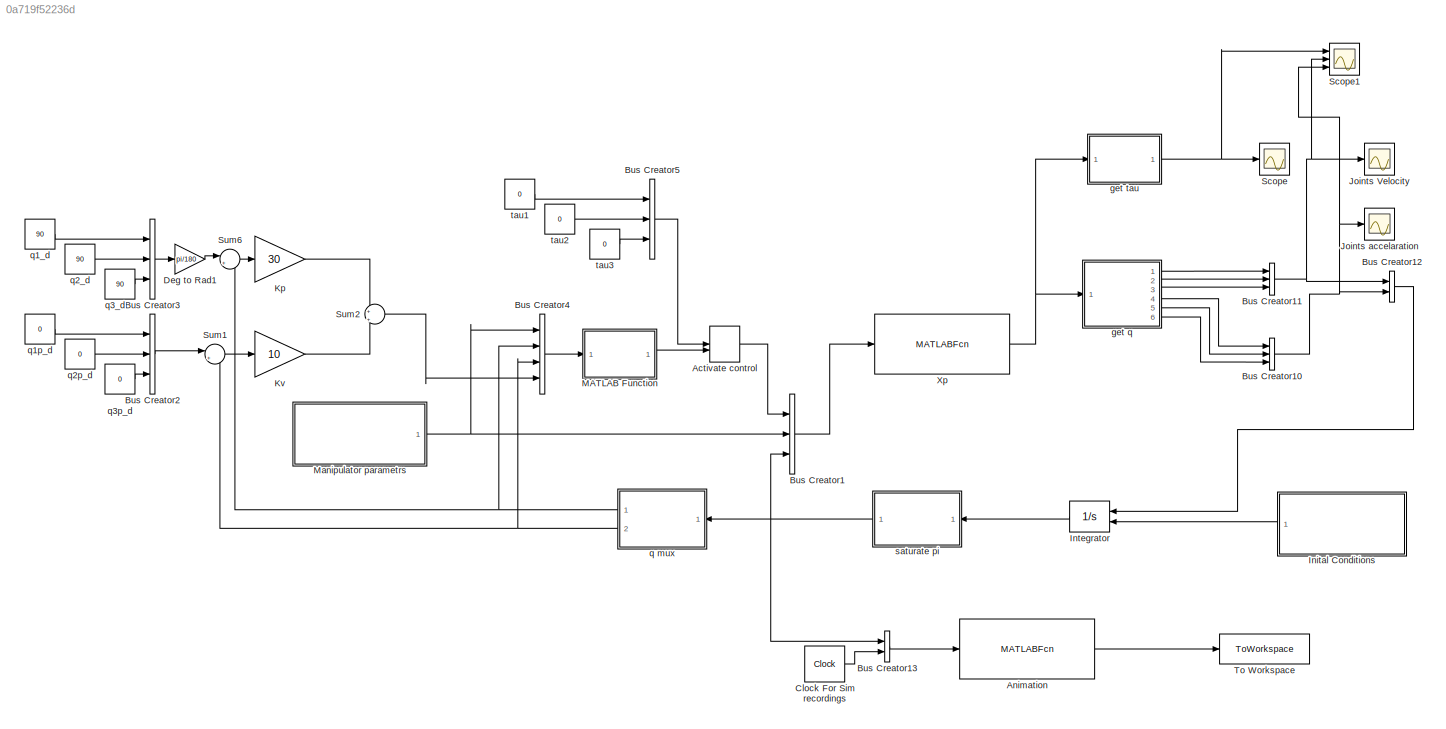
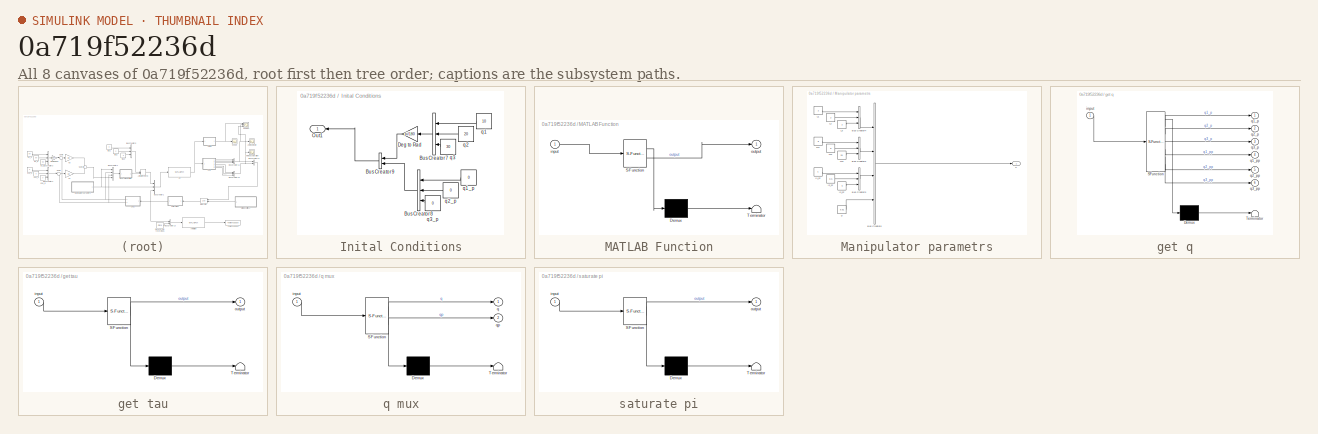
[diagram: thumbnail index - all 8 canvases of the model, root first then tree order]
MODEL slx_0a719f52236d
KIND model
CONFIG AbsTol = auto
CONFIG EnableMultiTasking = off
CONFIG FixedStep = auto
CONFIG MaxStep = 0.011
CONFIG MinStep = 0.01
CONFIG RelTol = 1e-3
CONFIG SampleTimeConstraint = Unconstrained
CONFIG SolverName = ode45
CONFIG StartTime = 0.0
CONFIG StopTime = 5
BLOCK [ManualSwitch] Activate control
  CurrentSetting = 0
BLOCK [MATLABFcn] Animation
  Description = yudyu
  MATLABFcn = AnimationSim
  OutputDimensions = 6
  OutputSignalType = real
  Ports = [1, 1]
BLOCK [BusCreator] Bus Creator1
  DisplayOption = bar
  InheritFromInputs = on
  Inputs = 3
  Ports = [3, 1]
BLOCK [BusCreator] Bus Creator10
  DisplayOption = bar
  InheritFromInputs = on
  Inputs = 3
  Ports = [3, 1]
BLOCK [BusCreator] Bus Creator11
  DisplayOption = bar
  InheritFromInputs = on
  Inputs = 3
  Ports = [3, 1]
BLOCK [BusCreator] Bus Creator12
  DisplayOption = bar
  InheritFromInputs = on
  Inputs = 2
  Ports = [2, 1]
BLOCK [BusCreator] Bus Creator13
  DisplayOption = bar
  InheritFromInputs = on
  Inputs = 2
  Ports = [2, 1]
BLOCK [BusCreator] Bus Creator2
  DisplayOption = bar
  InheritFromInputs = on
  Inputs = 3
  Ports = [3, 1]
BLOCK [BusCreator] Bus Creator3
  DisplayOption = bar
  InheritFromInputs = on
  Inputs = 3
  Ports = [3, 1]
BLOCK [BusCreator] Bus Creator4
  DisplayOption = bar
  InheritFromInputs = on
  Inputs = 4
  Ports = [4, 1]
BLOCK [BusCreator] Bus Creator5
  DisplayOption = bar
  InheritFromInputs = on
  Inputs = 3
  Ports = [3, 1]
BLOCK [Clock] Clock For Sim recordings
  DisplayTime = on
BLOCK [Gain] Deg to Rad1
  Gain = pi/180
BLOCK [SubSystem] Inital Conditions
  Ports = [0, 1]
  RequestExecContextInheritance = off
BLOCK [BusCreator] Inital Conditions/Bus Creator7
  DisplayOption = bar
  InheritFromInputs = on
  Inputs = 3
  Ports = [3, 1]
BLOCK [BusCreator] Inital Conditions/Bus Creator8
  DisplayOption = bar
  InheritFromInputs = on
  Inputs = 3
  Ports = [3, 1]
BLOCK [BusCreator] Inital Conditions/Bus Creator9
  DisplayOption = bar
  InheritFromInputs = on
  Inputs = 2
  Ports = [2, 1]
BLOCK [Gain] Inital Conditions/Deg to Rad
  Gain = pi/180
BLOCK [Outport] Inital Conditions/Out1
BLOCK [Constant] Inital Conditions/q1
  Value = 10
BLOCK [Constant] Inital Conditions/q1_p
  Value = 0
BLOCK [Constant] Inital Conditions/q2
  Value = 20
BLOCK [Constant] Inital Conditions/q2_p
  Value = 0
BLOCK [Constant] Inital Conditions/q3
  Value = 30
BLOCK [Constant] Inital Conditions/q3_p
  Value = 0
BLOCK [Integrator] Integrator
  InitialConditionSource = external
  Ports = [2, 1]
BLOCK [Scope] Joints Velocity
  Floating = off
  NumInputPorts = 1
  Ports = [1]
  ScopeSpecificationString = Simulink.scopes.TimeScopeBlockCfg('CurrentConfiguration', extmgr.ConfigurationSet(extmgr.Configuration('Core','General UI',true),extmgr.Configuration('Core','Source UI',true),extmgr.Configuration('Sources','WiredSimulink',true,'DataLoggingVariableName','ScopeData1'),extmgr.Configuration('Visuals','Time Domain',true,'SerializedDisplays',{struct('MinYLimReal','-0.37327','MaxYLimReal','3.35944','YLab...<+1425ch>
BLOCK [Scope] Joints accelaration
  Floating = off
  NumInputPorts = 1
  Ports = [1]
  ScopeSpecificationString = Simulink.scopes.TimeScopeBlockCfg('CurrentConfiguration', extmgr.ConfigurationSet(extmgr.Configuration('Core','General UI',true),extmgr.Configuration('Core','Source UI',true),extmgr.Configuration('Sources','WiredSimulink',true,'DataLoggingVariableName','ScopeData2'),extmgr.Configuration('Visuals','Time Domain',true,'SerializedDisplays',{struct('MinYLimReal','-12.42062','MaxYLimReal','47.92218','YL...<+1434ch>
BLOCK [Gain] Kp
  Gain = 30
BLOCK [Gain] Kv
  Gain = 10
BLOCK [SubSystem] MATLAB Function
  ErrorFcn = Stateflow.Translate.translate
  PermitHierarchicalResolution = ExplicitOnly
  Ports = [1, 1]
  RequestExecContextInheritance = off
  SFBlockType = MATLAB Function
  TreatAsAtomicUnit = on
BLOCK [Demux] MATLAB Function/ Demux 
  Outputs = 1
  Ports = [1, 1]
BLOCK [S-Function] MATLAB Function/ SFunction 
  EnableBusSupport = on
  FunctionName = sf_sfun
  PortCounts = [1 2]
  Ports = [1, 2]
  SFcnIsStateOwnerBlock = off
  SFunctionDeploymentMode = off
  Tag = Stateflow S-Function 5
BLOCK [Terminator] MATLAB Function/ Terminator 
BLOCK [Inport] MATLAB Function/input
BLOCK [Outport] MATLAB Function/output
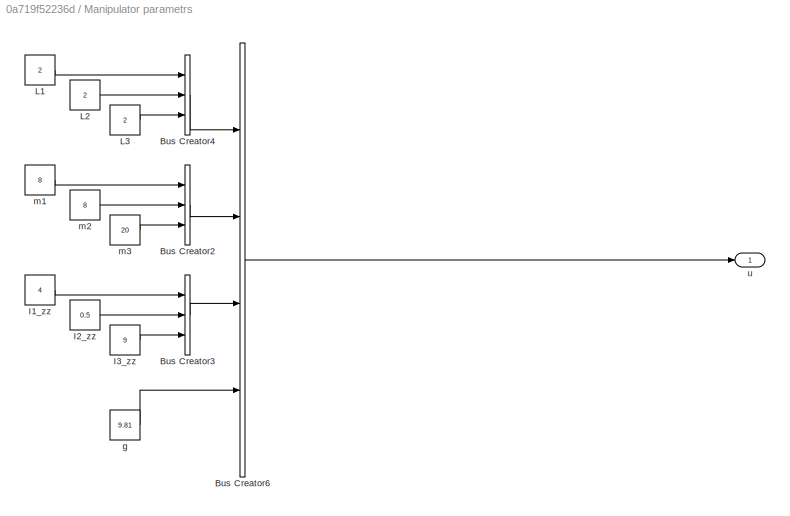
BLOCK [SubSystem] Manipulator parametrs
  Ports = [0, 1]
  RequestExecContextInheritance = off
BLOCK [BusCreator] Manipulator parametrs/Bus Creator2
  DisplayOption = bar
  InheritFromInputs = on
  Inputs = 3
  Ports = [3, 1]
BLOCK [BusCreator] Manipulator parametrs/Bus Creator3
  DisplayOption = bar
  InheritFromInputs = on
  Inputs = 3
  Ports = [3, 1]
BLOCK [BusCreator] Manipulator parametrs/Bus Creator4
  DisplayOption = bar
  InheritFromInputs = on
  Inputs = 3
  Ports = [3, 1]
BLOCK [BusCreator] Manipulator parametrs/Bus Creator6
  DisplayOption = bar
  InheritFromInputs = on
  Inputs = 4
  Ports = [4, 1]
BLOCK [Constant] Manipulator parametrs/I1_zz
  Value = 4
BLOCK [Constant] Manipulator parametrs/I2_zz
  Value = 0.5
BLOCK [Constant] Manipulator parametrs/I3_zz
  Value = 9
BLOCK [Constant] Manipulator parametrs/L1
  Value = 2
BLOCK [Constant] Manipulator parametrs/L2
  Value = 2
BLOCK [Constant] Manipulator parametrs/L3
  Value = 2
BLOCK [Constant] Manipulator parametrs/g
  Value = 9.81
BLOCK [Constant] Manipulator parametrs/m1
  Value = 8
BLOCK [Constant] Manipulator parametrs/m2
  Value = 8
BLOCK [Constant] Manipulator parametrs/m3
  Value = 20
BLOCK [Outport] Manipulator parametrs/u
BLOCK [Scope] Scope
  Floating = off
  NumInputPorts = 1
  Ports = [1]
  ScopeSpecificationString = Simulink.scopes.TimeScopeBlockCfg('CurrentConfiguration', extmgr.ConfigurationSet(extmgr.Configuration('Core','General UI',true),extmgr.Configuration('Core','Source UI',true),extmgr.Configuration('Sources','WiredSimulink',true),extmgr.Configuration('Visuals','Time Domain',true,'SerializedDisplays',{struct('MinYLimReal','-18927.72673','MaxYLimReal','41730.31584','YLabelReal','','MinYLimMag','   0.0...<+1455ch>
BLOCK [Scope] Scope1
  Floating = off
  NumInputPorts = 3
  Ports = [3]
  ScopeSpecificationString = Simulink.scopes.TimeScopeBlockCfg('CurrentConfiguration', extmgr.ConfigurationSet(extmgr.Configuration('Core','General UI',true),extmgr.Configuration('Core','Source UI',true),extmgr.Configuration('Sources','WiredSimulink',true,'DataLoggingVariableName','ScopeData3'),extmgr.Configuration('Visuals','Time Domain',true,'SerializedDisplays',{struct('MinYLimReal','-94379.04598','MaxYLimReal','256668.240...<+2933ch>
BLOCK [Sum] Sum1
  Inputs = |+-
  Ports = [2, 1]
BLOCK [Sum] Sum2
  Inputs = +|+
  Ports = [2, 1]
BLOCK [Sum] Sum6
  Inputs = |+-
  Ports = [2, 1]
BLOCK [ToWorkspace] To Workspace
  FixptAsFi = on
  MaxDataPoints = inf
  Ports = [1]
  SampleTime = -1
  SaveFormat = Timeseries
  VariableName = simout
BLOCK [MATLABFcn] Xp
  Description = yudyu
  MATLABFcn = Xp_solve
  OutputDimensions = 9
  OutputSignalType = real
  Ports = [1, 1]
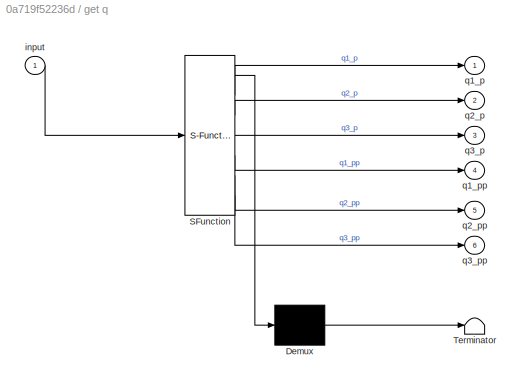
BLOCK [SubSystem] get q
  ErrorFcn = Stateflow.Translate.translate
  PermitHierarchicalResolution = ExplicitOnly
  Ports = [1, 6]
  RequestExecContextInheritance = off
  SFBlockType = MATLAB Function
  TreatAsAtomicUnit = on
BLOCK [Demux] get q/ Demux 
  Outputs = 1
  Ports = [1, 1]
BLOCK [S-Function] get q/ SFunction 
  EnableBusSupport = on
  FunctionName = sf_sfun
  PortCounts = [1 7]
  Ports = [1, 7]
  SFcnIsStateOwnerBlock = off
  SFunctionDeploymentMode = off
  Tag = Stateflow S-Function 4
BLOCK [Terminator] get q/ Terminator 
BLOCK [Inport] get q/input
BLOCK [Outport] get q/q1_p
BLOCK [Outport] get q/q1_pp
  Port = 4
BLOCK [Outport] get q/q2_p
  Port = 2
BLOCK [Outport] get q/q2_pp
  Port = 5
BLOCK [Outport] get q/q3_p
  Port = 3
BLOCK [Outport] get q/q3_pp
  Port = 6
BLOCK [SubSystem] get tau
  ErrorFcn = Stateflow.Translate.translate
  PermitHierarchicalResolution = ExplicitOnly
  Ports = [1, 1]
  RequestExecContextInheritance = off
  SFBlockType = MATLAB Function
  TreatAsAtomicUnit = on
BLOCK [Demux] get tau/ Demux 
  Outputs = 1
  Ports = [1, 1]
BLOCK [S-Function] get tau/ SFunction 
  EnableBusSupport = on
  FunctionName = sf_sfun
  PortCounts = [1 2]
  Ports = [1, 2]
  SFcnIsStateOwnerBlock = off
  SFunctionDeploymentMode = off
  Tag = Stateflow S-Function 2
BLOCK [Terminator] get tau/ Terminator 
BLOCK [Inport] get tau/input
BLOCK [Outport] get tau/output
BLOCK [SubSystem] q mux
  ErrorFcn = Stateflow.Translate.translate
  PermitHierarchicalResolution = ExplicitOnly
  Ports = [1, 2]
  RequestExecContextInheritance = off
  SFBlockType = MATLAB Function
  TreatAsAtomicUnit = on
BLOCK [Demux] q mux/ Demux 
  Outputs = 1
  Ports = [1, 1]
BLOCK [S-Function] q mux/ SFunction 
  EnableBusSupport = on
  FunctionName = sf_sfun
  PortCounts = [1 3]
  Ports = [1, 3]
  SFcnIsStateOwnerBlock = off
  SFunctionDeploymentMode = off
  Tag = Stateflow S-Function 1
BLOCK [Terminator] q mux/ Terminator 
BLOCK [Inport] q mux/input
BLOCK [Outport] q mux/q
BLOCK [Outport] q mux/qp
  Port = 2
BLOCK [Constant] q1_d
  Value = 90
BLOCK [Constant] q1p_d
  Value = 0
BLOCK [Constant] q2_d
  Value = 90
BLOCK [Constant] q2p_d
  Value = 0
BLOCK [Constant] q3_d
  Value = 90
BLOCK [Constant] q3p_d
  Value = 0
BLOCK [SubSystem] saturate pi
  ErrorFcn = Stateflow.Translate.translate
  PermitHierarchicalResolution = ExplicitOnly
  Ports = [1, 1]
  RequestExecContextInheritance = off
  SFBlockType = MATLAB Function
  TreatAsAtomicUnit = on
BLOCK [Demux] saturate pi/ Demux 
  Outputs = 1
  Ports = [1, 1]
BLOCK [S-Function] saturate pi/ SFunction 
  EnableBusSupport = on
  FunctionName = sf_sfun
  PortCounts = [1 2]
  Ports = [1, 2]
  SFcnIsStateOwnerBlock = off
  SFunctionDeploymentMode = off
  Tag = Stateflow S-Function 3
BLOCK [Terminator] saturate pi/ Terminator 
BLOCK [Inport] saturate pi/input
BLOCK [Outport] saturate pi/output
BLOCK [Constant] tau1
  Value = 0
BLOCK [Constant] tau2
  Value = 0
BLOCK [Constant] tau3
  Value = 0
LINE Activate control:1 -> Bus Creator1:1
LINE Animation:1 -> To Workspace:1
NET Bus Creator10:1 -> Bus Creator12:2, Joints accelaration:1, Scope1:3
NET Bus Creator11:1 -> Bus Creator12:1, Joints Velocity:1, Scope1:2
LINE Bus Creator12:1 -> Integrator:1
LINE Bus Creator13:1 -> Animation:1
LINE Bus Creator1:1 -> Xp:1
LINE Bus Creator2:1 -> Sum1:1
LINE Bus Creator3:1 -> Deg to Rad1:1
LINE Bus Creator4:1 -> MATLAB Function:1
LINE Bus Creator5:1 -> Activate control:1
LINE Clock For Sim recordings:1 -> Bus Creator13:2
LINE Deg to Rad1:1 -> Sum6:1
LINE Inital Conditions/Bus Creator7:1 -> Inital Conditions/Deg to Rad:1
LINE Inital Conditions/Bus Creator8:1 -> Inital Conditions/Bus Creator9:2
LINE Inital Conditions/Bus Creator9:1 -> Inital Conditions/Out1:1
LINE Inital Conditions/Deg to Rad:1 -> Inital Conditions/Bus Creator9:1
LINE Inital Conditions/q1:1 -> Inital Conditions/Bus Creator7:1
LINE Inital Conditions/q1_p:1 -> Inital Conditions/Bus Creator8:1
LINE Inital Conditions/q2:1 -> Inital Conditions/Bus Creator7:2
LINE Inital Conditions/q2_p:1 -> Inital Conditions/Bus Creator8:2
LINE Inital Conditions/q3:1 -> Inital Conditions/Bus Creator7:3
LINE Inital Conditions/q3_p:1 -> Inital Conditions/Bus Creator8:3
LINE Inital Conditions:1 -> Integrator:2
LINE Integrator:1 -> saturate pi:1
LINE Kp:1 -> Sum2:1
LINE Kv:1 -> Sum2:2
LINE MATLAB Function:1 -> Activate control:2
LINE Manipulator parametrs/Bus Creator2:1 -> Manipulator parametrs/Bus Creator6:2
LINE Manipulator parametrs/Bus Creator3:1 -> Manipulator parametrs/Bus Creator6:3
LINE Manipulator parametrs/Bus Creator4:1 -> Manipulator parametrs/Bus Creator6:1
LINE Manipulator parametrs/Bus Creator6:1 -> Manipulator parametrs/u:1
LINE Manipulator parametrs/I1_zz:1 -> Manipulator parametrs/Bus Creator3:1
LINE Manipulator parametrs/I2_zz:1 -> Manipulator parametrs/Bus Creator3:2
LINE Manipulator parametrs/I3_zz:1 -> Manipulator parametrs/Bus Creator3:3
LINE Manipulator parametrs/L1:1 -> Manipulator parametrs/Bus Creator4:1
LINE Manipulator parametrs/L2:1 -> Manipulator parametrs/Bus Creator4:2
LINE Manipulator parametrs/L3:1 -> Manipulator parametrs/Bus Creator4:3
LINE Manipulator parametrs/g:1 -> Manipulator parametrs/Bus Creator6:4
LINE Manipulator parametrs/m1:1 -> Manipulator parametrs/Bus Creator2:1
LINE Manipulator parametrs/m2:1 -> Manipulator parametrs/Bus Creator2:2
LINE Manipulator parametrs/m3:1 -> Manipulator parametrs/Bus Creator2:3
NET Manipulator parametrs:1 -> Bus Creator1:2, Bus Creator4:1
LINE Sum1:1 -> Kv:1
LINE Sum2:1 -> Bus Creator4:4
LINE Sum6:1 -> Kp:1
NET Xp:1 -> get q:1, get tau:1
LINE get q:1 -> Bus Creator11:1
LINE get q:2 -> Bus Creator11:2
LINE get q:3 -> Bus Creator11:3
LINE get q:4 -> Bus Creator10:1
LINE get q:5 -> Bus Creator10:2
LINE get q:6 -> Bus Creator10:3
NET get tau:1 -> Scope1:1, Scope:1
NET q mux:1 -> Bus Creator4:2, Sum6:2
NET q mux:2 -> Bus Creator4:3, Sum1:2
LINE q1_d:1 -> Bus Creator3:1
LINE q1p_d:1 -> Bus Creator2:1
LINE q2_d:1 -> Bus Creator3:2
LINE q2p_d:1 -> Bus Creator2:2
LINE q3_d:1 -> Bus Creator3:3
LINE q3p_d:1 -> Bus Creator2:3
NET saturate pi:1 -> Bus Creator13:1, Bus Creator1:3, q mux:1
LINE tau1:1 -> Bus Creator5:1
LINE tau2:1 -> Bus Creator5:2
LINE tau3:1 -> Bus Creator5:3
note: NET lines group one-source signal fan-out (src -> all destinations, sorted); 1:1 wires keep LINE
CHART q mux states=1 transitions=1
  STATE_LABEL 'eML_blk_kernel()'
  STATE_LABEL 'SCRIPT:\nfunction [q, qp]  = q_mux(input)\n    q1 = input(1);\n    q2 = input(2);\n    q3 = input(3);\n    q1_p = input(4);\n    q2_p = input(5);\n    q3_p = input(6);\n    q = [q1, q2, q3];\n    qp = [q1_p, q2_p, q3_p];\nend'
CHART get tau states=1 transitions=1
  STATE_LABEL 'eML_blk_kernel()'
  STATE_LABEL 'SCRIPT:\nfunction output  = get_tau(input)\n    tau1 = input(7);\n    tau2 = input(8);\n    tau3 = input(9);\n    output = [tau1, tau2, tau3];\nend'
CHART saturate pi states=1 transitions=1
  STATE_LABEL 'eML_blk_kernel()'
  STATE_LABEL 'SCRIPT:\nfunction output  = saturate_pi(input)\n    q1 = input(1);\n    q2 = input(2);\n    q3 = input(3);\n    q1_p = input(4);\n    q2_p = input(5);\n    q3_p = input(6); \n    q1 = atan2(sin(q1),cos(q1));\n    q2 = atan2(sin(q2),cos(q2));\n    q3 = atan2(sin(q3),cos(q3));\n    output = [q1, q2, q3, q1_p, q2_p, q3_p];\nend'
CHART get q states=1 transitions=1
  STATE_LABEL 'eML_blk_kernel()'
  STATE_LABEL 'SCRIPT:\nfunction [q1_p, q2_p, q3_p, q1_pp, q2_pp, q3_pp]  = get_q(input)\n    q1_p = input(1);\n    q2_p = input(2);\n    q3_p = input(3);\n    q1_pp = input(4);\n    q2_pp = input(5);\n    q3_pp = input(6);\n    %output = [q1_p, q2_p, q3_p, q1_pp, q2_pp, q3_pp];\nend'
CHART MATLAB Function states=1 transitions=1
  STATE_LABEL 'eML_blk_kernel()'
  STATE_LABEL 'SCRIPT:\nfunction output = fcn(input)\n\n    L1 = input(1);\n    L2 = input(2);\n    L3 = input(3);\n    m1 = input(4);\n    m2 = input(5);\n    m3 = input(6);\n    I1_zz = input(7);\n    I2_zz = input(8);\n    I3_zz = input(9);\n    g = input(10);\n    %D1 = input(11);\n    %D2 = input(12);\n    %D3 = input(13);\n%     D1 = 1;\n%     D2 = 1;\n%     D3 = 1;\n    q1 = input(11);\n    q2 = input(12);\n    q3 = input(13)...<+3608ch>'
CHART  states=0 transitions=0
CHART  states=0 transitions=0
CHART  states=0 transitions=0
CHART  states=0 transitions=0
CHART  states=0 transitions=0
